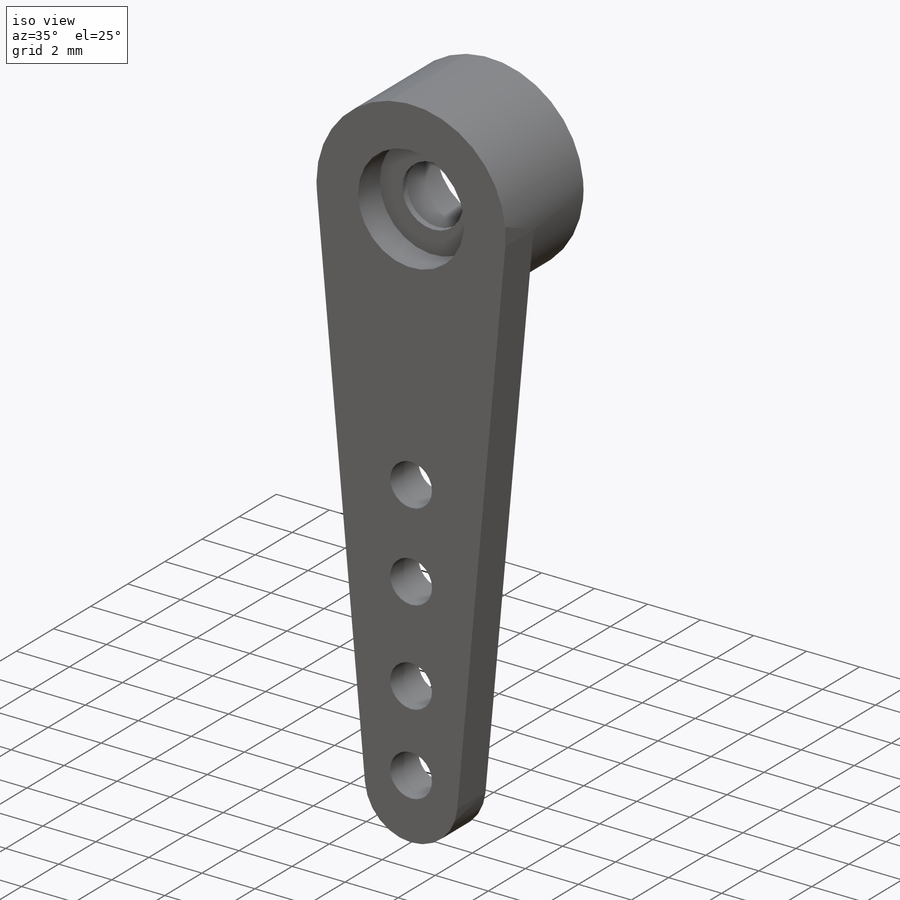
[diagram: iso view]
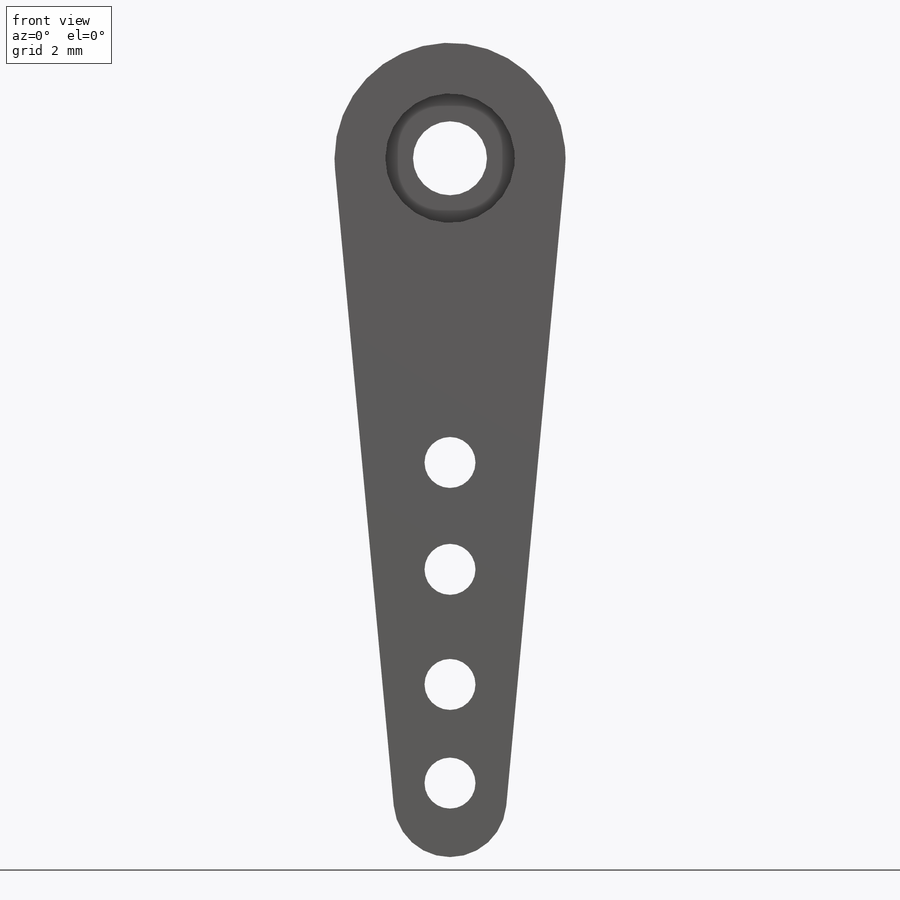
[diagram: front view]
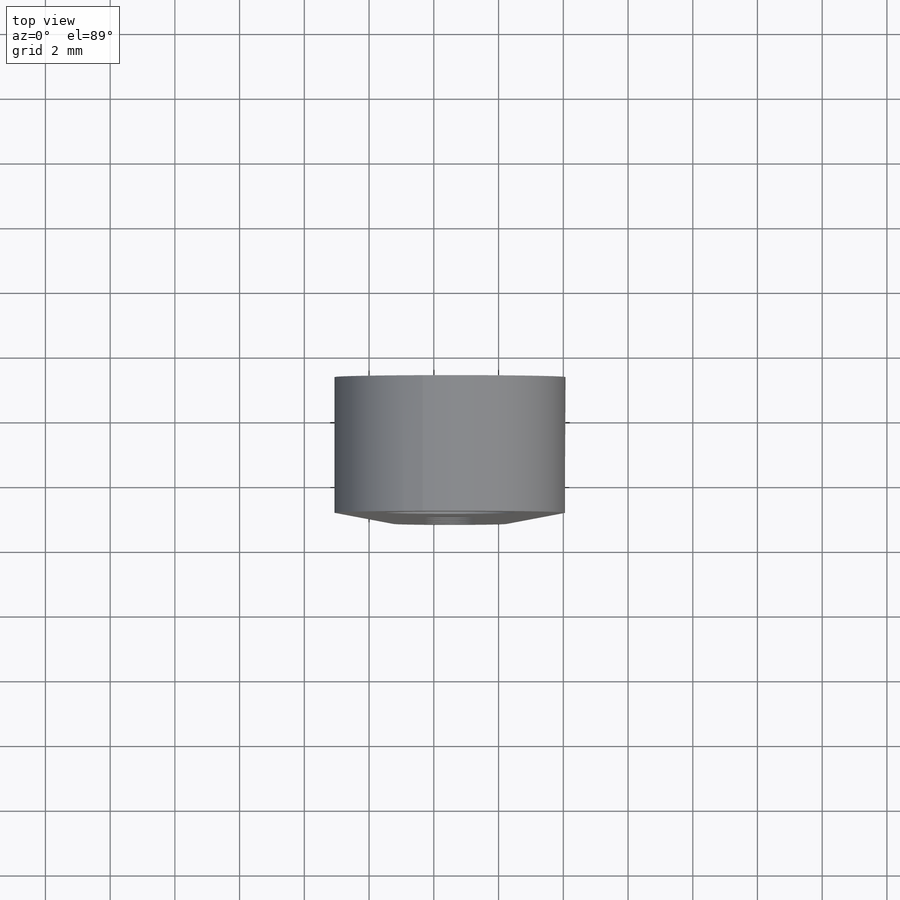
[diagram: top view]
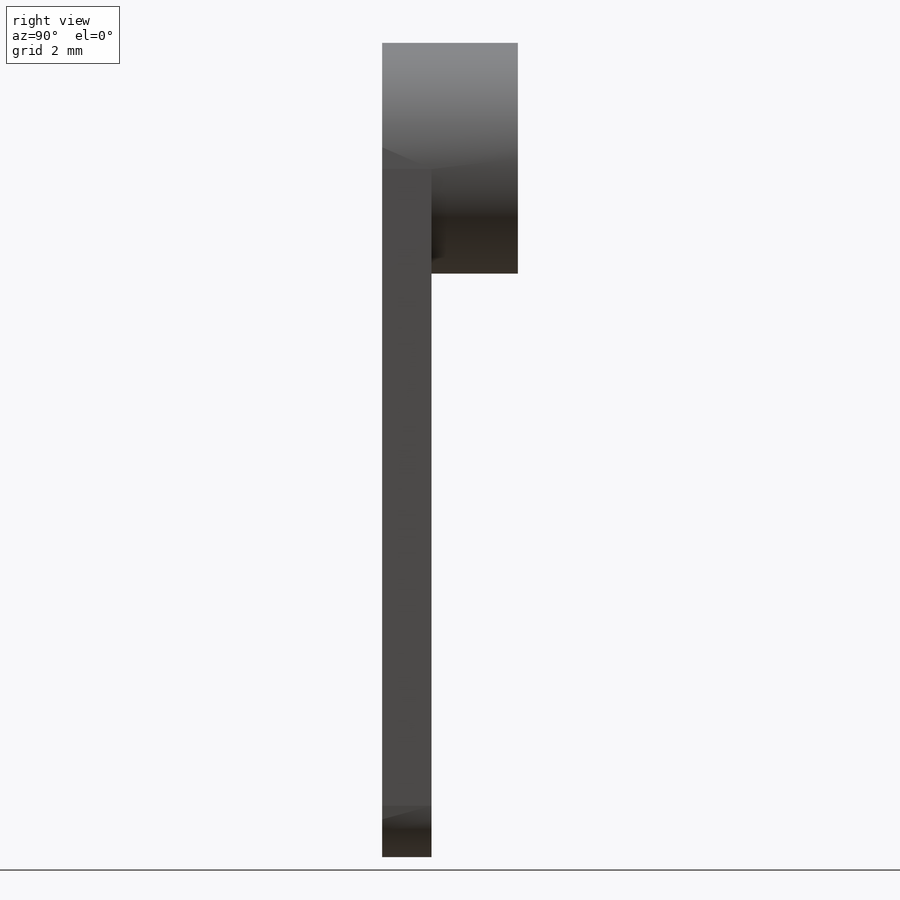
[diagram: right view]
SOLIDWORKS PART (.sldprt)
format: sldprt  version: not decoded by parser v0  size: 202,752 bytes
history: native  units: mm
features: sketch x3, extrude x3, material x1, plane x1 (+13 scaffold rows collapsed)
feature tree (21):
  scaffold x13  (default folders/planes/origin — collapsed)
  material  "Nylon 6/10"
  plane  "Plane1"
  sketch  "Sketch1"  dims[D1=7.1374mm D2=0.0mm]
  extrude  "Boss-Extrude1"  Depth=4.191mm
  sketch  "Sketch5"  dims[D1=2.286mm]
  extrude  "Boss-Extrude2"  Depth=1.1684mm
  sketch  "Sketch6"  dims[c1.D1=3.4925mm c1.D2=3.4925mm c1.D4=1.5748mm c1.D7=2.286mm c1.D6=2.286mm c1.D5=2.286mm c1.D8=1.5748mm c2.D2=21.59mm c2.D3=5.6261mm c2.D6=1.7018mm c2.D7=9.398mm c3.D6=12.7mm c3.D5=16.256mm c3.D8=19.304mm]
  extrude  "Boss-Extrude3"  Depth=1.524mm
decode coverage: 6 of 6 modeling features carry decoded parameters
note: suppression state not decoded; provenance and decode notes live in map.json
